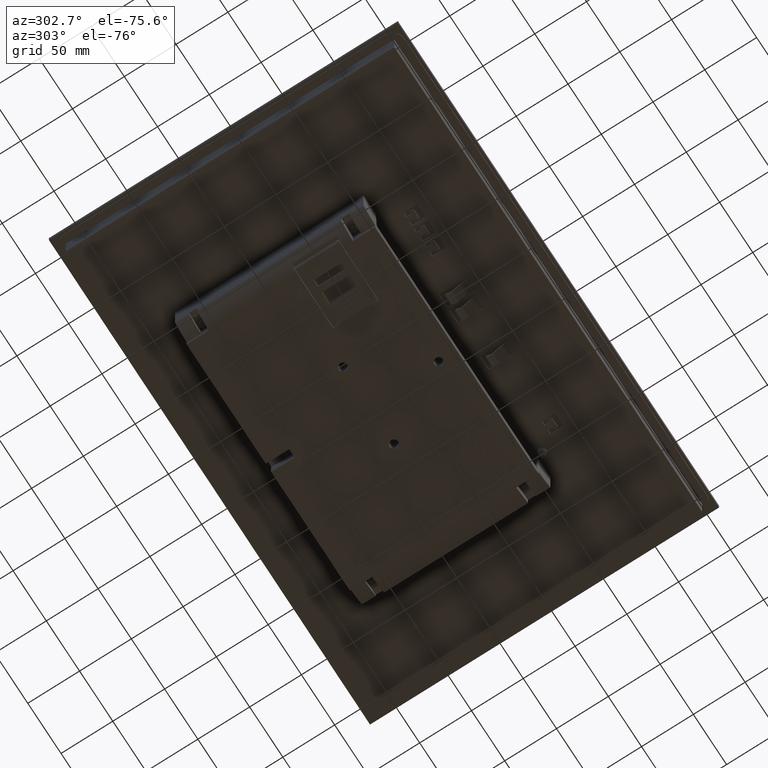
[diagram: clean part render]
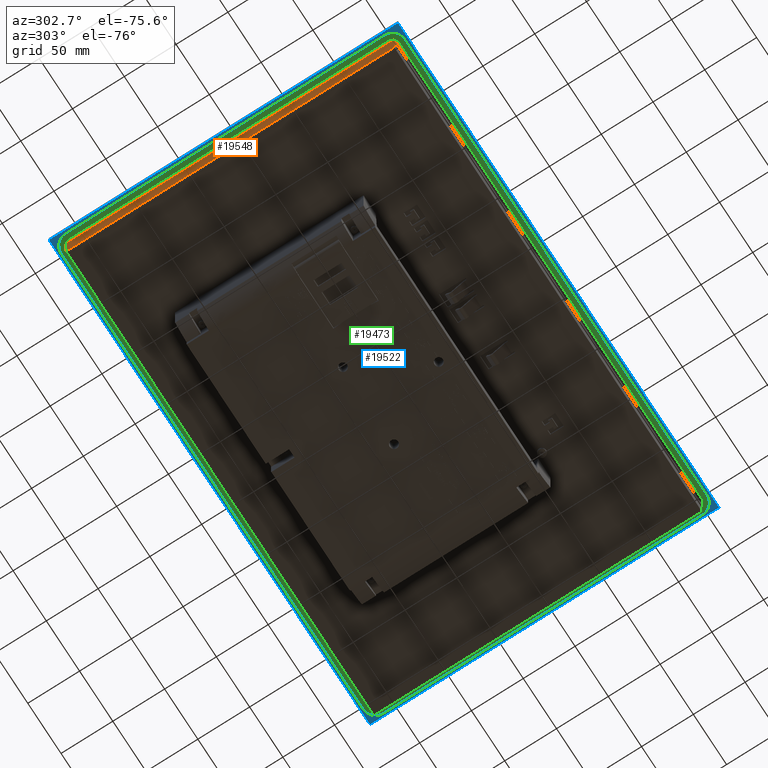
[diagram: same view with three faces highlighted in distinct colors, each labeled with its STEP entity id]
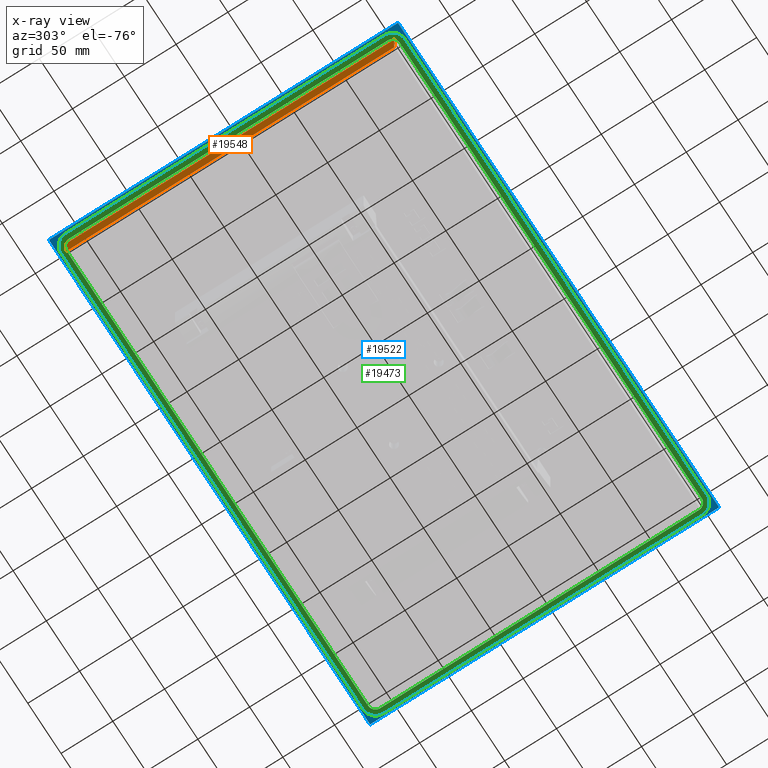
[diagram: x-ray of the same camera — body ghosted, the three highlighted faces saturated]
A machine part, auxiliary view with three faces highlighted in distinct colors.
The next image is the same camera in x-ray (body ghosted, the three faces saturated) — at least one of them is partly hidden behind the body in this view.
Their STEP definitions:

[orange] entity #19548 — the highlighted planar face has unit normal (-1, 0, 0).
#4044=LINE('',#66399,#9380);
#4135=LINE('',#66615,#9471);
#4139=LINE('',#66622,#9475);
#4140=LINE('',#66624,#9476);
#9380=VECTOR('',#54776,1.);
#9471=VECTOR('',#54953,1.);
#9475=VECTOR('',#54961,1.);
#9476=VECTOR('',#54964,1.);
#14742=FACE_OUTER_BOUND('',#23237,.T.);
#17155=PLANE('',#51076);
#19548=ADVANCED_FACE('',(#14742),#17155,.T.);
#23237=EDGE_LOOP('',(#27261,#27262,#27263,#27264));
#27261=ORIENTED_EDGE('',*,*,#44332,.F.);
#27262=ORIENTED_EDGE('',*,*,#44336,.F.);
#27263=ORIENTED_EDGE('',*,*,#44225,.T.);
#27264=ORIENTED_EDGE('',*,*,#44337,.T.);
#39665=VERTEX_POINT('',#66398);
#39666=VERTEX_POINT('',#66400);
#39747=VERTEX_POINT('',#66614);
#39748=VERTEX_POINT('',#66616);
#44225=EDGE_CURVE('',#39666,#39665,#4044,.T.);
#44332=EDGE_CURVE('',#39747,#39748,#4135,.T.);
#44336=EDGE_CURVE('',#39666,#39747,#4139,.T.);
#44337=EDGE_CURVE('',#39665,#39748,#4140,.T.);
#51076=AXIS2_PLACEMENT_3D('',#66625,#54965,#54966);
#54776=DIRECTION('',(0.,1.,0.));
#54953=DIRECTION('',(0.,1.,0.));
#54961=DIRECTION('',(0.,0.,1.));
#54964=DIRECTION('',(0.,0.,1.));
#54965=DIRECTION('',(1.,0.,0.));
#54966=DIRECTION('',(0.,0.,-1.));
#66398=CARTESIAN_POINT('',(231.45,144.45,-28.));
#66399=CARTESIAN_POINT('',(231.45,-172.45,-28.));
#66400=CARTESIAN_POINT('',(231.45,-172.45,-28.));
#66614=CARTESIAN_POINT('',(231.45,-172.45,-2.5));
#66615=CARTESIAN_POINT('',(231.45,-172.45,-2.5));
#66616=CARTESIAN_POINT('',(231.45,144.45,-2.5));
#66622=CARTESIAN_POINT('',(231.45,-172.45,-28.));
#66624=CARTESIAN_POINT('',(231.45,144.45,-28.));
#66625=CARTESIAN_POINT('',(231.45,-172.45,-28.));

[blue] entity #19522 — the highlighted planar face has unit normal (0, 0, -1).
#4085=LINE('',#66479,#9421);
#4086=LINE('',#66482,#9422);
#4087=LINE('',#66484,#9423);
#4088=LINE('',#66486,#9424);
#4089=LINE('',#66490,#9425);
#4090=LINE('',#66494,#9426);
#4091=LINE('',#66498,#9427);
#4092=LINE('',#66502,#9428);
#9421=VECTOR('',#54825,1.);
#9422=VECTOR('',#54826,1.);
#9423=VECTOR('',#54827,1.);
#9424=VECTOR('',#54828,1.);
#9425=VECTOR('',#54831,1.);
#9426=VECTOR('',#54834,1.);
#9427=VECTOR('',#54837,1.);
#9428=VECTOR('',#54840,1.);
#17137=PLANE('',#51038);
#19522=ADVANCED_FACE('',(#22429,#22430),#17137,.T.);
#22429=FACE_BOUND('',#23207,.T.);
#22430=FACE_BOUND('',#23208,.T.);
#23207=EDGE_LOOP('',(#27125,#27126,#27127,#27128));
#23208=EDGE_LOOP('',(#27129,#27130,#27131,#27132,#27133,#27134,#27135,#27136));
#27125=ORIENTED_EDGE('',*,*,#44266,.F.);
#27126=ORIENTED_EDGE('',*,*,#44267,.F.);
#27127=ORIENTED_EDGE('',*,*,#44268,.T.);
#27128=ORIENTED_EDGE('',*,*,#44269,.T.);
#27129=ORIENTED_EDGE('',*,*,#44270,.T.);
#27130=ORIENTED_EDGE('',*,*,#44271,.T.);
#27131=ORIENTED_EDGE('',*,*,#44272,.T.);
#27132=ORIENTED_EDGE('',*,*,#44273,.T.);
#27133=ORIENTED_EDGE('',*,*,#44274,.T.);
#27134=ORIENTED_EDGE('',*,*,#44275,.T.);
#27135=ORIENTED_EDGE('',*,*,#44276,.T.);
#27136=ORIENTED_EDGE('',*,*,#44277,.T.);
#39701=VERTEX_POINT('',#66480);
#39702=VERTEX_POINT('',#66481);
#39703=VERTEX_POINT('',#66483);
#39704=VERTEX_POINT('',#66485);
#39705=VERTEX_POINT('',#66488);
#39706=VERTEX_POINT('',#66489);
#39707=VERTEX_POINT('',#66491);
#39708=VERTEX_POINT('',#66493);
#39709=VERTEX_POINT('',#66495);
#39710=VERTEX_POINT('',#66497);
#39711=VERTEX_POINT('',#66499);
#39712=VERTEX_POINT('',#66501);
#44266=EDGE_CURVE('',#39701,#39702,#4085,.T.);
#44267=EDGE_CURVE('',#39703,#39701,#4086,.T.);
#44268=EDGE_CURVE('',#39703,#39704,#4087,.T.);
#44269=EDGE_CURVE('',#39704,#39702,#4088,.T.);
#44270=EDGE_CURVE('',#39705,#39706,#50401,.T.);
#44271=EDGE_CURVE('',#39706,#39707,#4089,.T.);
#44272=EDGE_CURVE('',#39707,#39708,#50402,.T.);
#44273=EDGE_CURVE('',#39708,#39709,#4090,.T.);
#44274=EDGE_CURVE('',#39709,#39710,#50403,.T.);
#44275=EDGE_CURVE('',#39710,#39711,#4091,.T.);
#44276=EDGE_CURVE('',#39711,#39712,#50404,.T.);
#44277=EDGE_CURVE('',#39712,#39705,#4092,.T.);
#50401=CIRCLE('',#51034,12.01685102585);
#50402=CIRCLE('',#51035,12.01685102585);
#50403=CIRCLE('',#51036,12.01685102585);
#50404=CIRCLE('',#51037,12.01685102585);
#51034=AXIS2_PLACEMENT_3D('',#66487,#54829,#54830);
#51035=AXIS2_PLACEMENT_3D('',#66492,#54832,#54833);
#51036=AXIS2_PLACEMENT_3D('',#66496,#54835,#54836);
#51037=AXIS2_PLACEMENT_3D('',#66500,#54838,#54839);
#51038=AXIS2_PLACEMENT_3D('',#66503,#54841,#54842);
#54825=DIRECTION('',(-1.,0.,0.));
#54826=DIRECTION('',(0.,1.,0.));
#54827=DIRECTION('',(-1.,0.,0.));
#54828=DIRECTION('',(0.,1.,0.));
#54829=DIRECTION('',(0.,0.,1.));
#54830=DIRECTION('',(0.,1.,0.));
#54831=DIRECTION('',(0.,-1.,0.));
#54832=DIRECTION('',(0.,0.,1.));
#54833=DIRECTION('',(-1.,0.,0.));
#54834=DIRECTION('',(1.,0.,0.));
#54835=DIRECTION('',(0.,0.,1.));
#54836=DIRECTION('',(0.,-1.,0.));
#54837=DIRECTION('',(0.,1.,0.));
#54838=DIRECTION('',(0.,0.,1.));
#54839=DIRECTION('',(1.,0.,0.));
#54840=DIRECTION('',(-1.,0.,0.));
#54841=DIRECTION('',(0.,0.,-1.));
#54842=DIRECTION('',(-1.,0.,0.));
#66479=CARTESIAN_POINT('',(241.49999999999,154.5,-2.5));
#66480=CARTESIAN_POINT('',(241.49999999999,154.5,-2.50000000000547));
#66481=CARTESIAN_POINT('',(-241.5,154.5,-2.5));
#66482=CARTESIAN_POINT('',(241.49999999999,-182.5,-2.50000000000547));
#66483=CARTESIAN_POINT('',(241.49999999999,-182.5,-2.50000000000547));
#66484=CARTESIAN_POINT('',(241.49999999999,-182.5,-2.5));
#66485=CARTESIAN_POINT('',(-241.5,-182.5,-2.5));
#66486=CARTESIAN_POINT('',(-241.5,-182.5,-2.5));
#66487=CARTESIAN_POINT('',(-227.,140.,-2.5));
#66488=CARTESIAN_POINT('',(-227.,152.0168510261,-2.5));
#66489=CARTESIAN_POINT('',(-239.01685102585,140.,-2.5));
#66490=CARTESIAN_POINT('',(-239.0168510261,140.,-2.5));
#66491=CARTESIAN_POINT('',(-239.0168510261,-168.,-2.5));
#66492=CARTESIAN_POINT('',(-227.,-168.,-2.5));
#66493=CARTESIAN_POINT('',(-227.,-180.01685102585,-2.5));
#66494=CARTESIAN_POINT('',(-227.,-180.0168510261,-2.5));
#66495=CARTESIAN_POINT('',(227.,-180.0168510261,-2.5));
#66496=CARTESIAN_POINT('',(227.,-168.,-2.5));
#66497=CARTESIAN_POINT('',(239.01685102585,-168.,-2.5));
#66498=CARTESIAN_POINT('',(239.0168510261,-168.,-2.5));
#66499=CARTESIAN_POINT('',(239.0168510261,140.,-2.5));
#66500=CARTESIAN_POINT('',(227.,140.,-2.5));
#66501=CARTESIAN_POINT('',(227.,152.01685102585,-2.5));
#66502=CARTESIAN_POINT('',(227.,152.0168510261,-2.5));
#66503=CARTESIAN_POINT('',(241.49999999999,-182.5,-2.5));

[green] entity #19473 — the highlighted planar face has unit normal (0, 0, -1).
#3795=LINE('',#65720,#9131);
#3800=LINE('',#65734,#9136);
#3803=LINE('',#65749,#9139);
#3806=LINE('',#65764,#9142);
#3809=LINE('',#65771,#9145);
#3814=LINE('',#65785,#9150);
#3818=LINE('',#65797,#9154);
#3822=LINE('',#65809,#9158);
#9131=VECTOR('',#54241,1.);
#9136=VECTOR('',#54254,1.);
#9139=VECTOR('',#54265,1.);
#9142=VECTOR('',#54276,1.);
#9145=VECTOR('',#54281,1.);
#9150=VECTOR('',#54294,1.);
#9154=VECTOR('',#54306,1.);
#9158=VECTOR('',#54318,1.);
#17106=PLANE('',#50919);
#19473=ADVANCED_FACE('',(#22391,#22392),#17106,.T.);
#22391=FACE_BOUND('',#23131,.T.);
#22392=FACE_BOUND('',#23132,.T.);
#23131=EDGE_LOOP('',(#26664,#26665,#26666,#26667,#26668,#26669,#26670,#26671));
#23132=EDGE_LOOP('',(#26672,#26673,#26674,#26675,#26676,#26677,#26678,#26679));
#26664=ORIENTED_EDGE('',*,*,#43914,.T.);
#26665=ORIENTED_EDGE('',*,*,#43918,.T.);
#26666=ORIENTED_EDGE('',*,*,#43921,.T.);
#26667=ORIENTED_EDGE('',*,*,#43924,.T.);
#26668=ORIENTED_EDGE('',*,*,#43927,.T.);
#26669=ORIENTED_EDGE('',*,*,#43930,.T.);
#26670=ORIENTED_EDGE('',*,*,#43933,.T.);
#26671=ORIENTED_EDGE('',*,*,#43935,.T.);
#26672=ORIENTED_EDGE('',*,*,#43892,.T.);
#26673=ORIENTED_EDGE('',*,*,#43896,.T.);
#26674=ORIENTED_EDGE('',*,*,#43899,.T.);
#26675=ORIENTED_EDGE('',*,*,#43902,.T.);
#26676=ORIENTED_EDGE('',*,*,#43905,.T.);
#26677=ORIENTED_EDGE('',*,*,#43908,.T.);
#26678=ORIENTED_EDGE('',*,*,#43911,.T.);
#26679=ORIENTED_EDGE('',*,*,#43937,.T.);
#39386=VERTEX_POINT('',#65719);
#39387=VERTEX_POINT('',#65721);
#39389=VERTEX_POINT('',#65727);
#39391=VERTEX_POINT('',#65733);
#39393=VERTEX_POINT('',#65739);
#39395=VERTEX_POINT('',#65748);
#39397=VERTEX_POINT('',#65757);
#39399=VERTEX_POINT('',#65763);
#39402=VERTEX_POINT('',#65770);
#39403=VERTEX_POINT('',#65772);
#39405=VERTEX_POINT('',#65778);
#39407=VERTEX_POINT('',#65784);
#39409=VERTEX_POINT('',#65790);
#39411=VERTEX_POINT('',#65796);
#39413=VERTEX_POINT('',#65802);
#39415=VERTEX_POINT('',#65808);
#43892=EDGE_CURVE('',#39387,#39386,#3795,.T.);
#43896=EDGE_CURVE('',#39386,#39389,#50320,.T.);
#43899=EDGE_CURVE('',#39389,#39391,#3800,.T.);
#43902=EDGE_CURVE('',#39391,#39393,#50322,.T.);
#43905=EDGE_CURVE('',#39393,#39395,#3803,.T.);
#43908=EDGE_CURVE('',#39395,#39397,#50324,.T.);
#43911=EDGE_CURVE('',#39397,#39399,#3806,.T.);
#43914=EDGE_CURVE('',#39403,#39402,#3809,.T.);
#43918=EDGE_CURVE('',#39402,#39405,#50326,.T.);
#43921=EDGE_CURVE('',#39405,#39407,#3814,.T.);
#43924=EDGE_CURVE('',#39407,#39409,#50328,.T.);
#43927=EDGE_CURVE('',#39409,#39411,#3818,.T.);
#43930=EDGE_CURVE('',#39411,#39413,#50330,.T.);
#43933=EDGE_CURVE('',#39413,#39415,#3822,.T.);
#43935=EDGE_CURVE('',#39415,#39403,#50332,.T.);
#43937=EDGE_CURVE('',#39399,#39387,#50334,.T.);
#50320=CIRCLE('',#50889,7.);
#50322=CIRCLE('',#50893,7.);
#50324=CIRCLE('',#50897,6.983148973279);
#50326=CIRCLE('',#50902,12.);
#50328=CIRCLE('',#50906,12.);
#50330=CIRCLE('',#50910,12.);
#50332=CIRCLE('',#50914,12.);
#50334=CIRCLE('',#50917,7.);
#50889=AXIS2_PLACEMENT_3D('',#65728,#54248,#54249);
#50893=AXIS2_PLACEMENT_3D('',#65740,#54260,#54261);
#50897=AXIS2_PLACEMENT_3D('',#65758,#54270,#54271);
#50902=AXIS2_PLACEMENT_3D('',#65779,#54288,#54289);
#50906=AXIS2_PLACEMENT_3D('',#65791,#54300,#54301);
#50910=AXIS2_PLACEMENT_3D('',#65803,#54312,#54313);
#50914=AXIS2_PLACEMENT_3D('',#65812,#54323,#54324);
#50917=AXIS2_PLACEMENT_3D('',#65815,#54329,#54330);
#50919=AXIS2_PLACEMENT_3D('',#65817,#54333,#54334);
#54241=DIRECTION('',(0.,-1.,0.));
#54248=DIRECTION('',(0.,0.,1.));
#54249=DIRECTION('',(-1.,0.,0.));
#54254=DIRECTION('',(1.,0.,0.));
#54260=DIRECTION('',(0.,0.,1.));
#54261=DIRECTION('',(0.,-1.,0.));
#54265=DIRECTION('',(0.,1.,0.));
#54270=DIRECTION('',(0.,0.,1.));
#54271=DIRECTION('',(0.,1.,0.));
#54276=DIRECTION('',(-1.,0.,0.));
#54281=DIRECTION('',(0.,1.,0.));
#54288=DIRECTION('',(0.,0.,-1.));
#54289=DIRECTION('',(0.,1.,0.));
#54294=DIRECTION('',(1.,0.,0.));
#54300=DIRECTION('',(0.,0.,-1.));
#54301=DIRECTION('',(1.,0.,0.));
#54306=DIRECTION('',(0.,-1.,0.));
#54312=DIRECTION('',(0.,0.,-1.));
#54313=DIRECTION('',(0.,-1.,0.));
#54318=DIRECTION('',(-1.,0.,0.));
#54323=DIRECTION('',(0.,0.,-1.));
#54324=DIRECTION('',(-1.,0.,0.));
#54329=DIRECTION('',(0.,0.,1.));
#54330=DIRECTION('',(0.,1.,0.));
#54333=DIRECTION('',(0.,0.,-1.));
#54334=DIRECTION('',(-1.,0.,0.));
#65719=CARTESIAN_POINT('',(-234.,-168.,-4.5));
#65720=CARTESIAN_POINT('',(-234.,140.,-4.5));
#65721=CARTESIAN_POINT('',(-234.,140.,-4.5));
#65727=CARTESIAN_POINT('',(-227.,-175.,-4.5));
#65728=CARTESIAN_POINT('',(-227.,-168.,-4.5));
#65733=CARTESIAN_POINT('',(227.,-175.,-4.5));
#65734=CARTESIAN_POINT('',(-227.,-175.,-4.5));
#65739=CARTESIAN_POINT('',(234.,-168.,-4.5));
#65740=CARTESIAN_POINT('',(227.,-168.,-4.5));
#65748=CARTESIAN_POINT('',(233.99157448664,140.,-4.5));
#65749=CARTESIAN_POINT('',(234.,-168.,-4.5));
#65757=CARTESIAN_POINT('',(227.,146.991574486639,-4.5));
#65758=CARTESIAN_POINT('',(227.,140.,-4.5));
#65763=CARTESIAN_POINT('',(-227.,147.,-4.5));
#65764=CARTESIAN_POINT('',(227.,147.,-4.5));
#65770=CARTESIAN_POINT('',(-239.,140.,-4.5));
#65771=CARTESIAN_POINT('',(-239.,-168.,-4.5));
#65772=CARTESIAN_POINT('',(-239.,-168.,-4.5));
#65778=CARTESIAN_POINT('',(-227.,152.,-4.5));
#65779=CARTESIAN_POINT('',(-227.,140.,-4.5));
#65784=CARTESIAN_POINT('',(227.,152.,-4.5));
#65785=CARTESIAN_POINT('',(-227.,152.,-4.5));
#65790=CARTESIAN_POINT('',(239.,140.,-4.5));
#65791=CARTESIAN_POINT('',(227.,140.,-4.5));
#65796=CARTESIAN_POINT('',(239.,-168.,-4.5));
#65797=CARTESIAN_POINT('',(239.,140.,-4.5));
#65802=CARTESIAN_POINT('',(227.,-180.,-4.5));
#65803=CARTESIAN_POINT('',(227.,-168.,-4.5));
#65808=CARTESIAN_POINT('',(-227.,-180.,-4.5));
#65809=CARTESIAN_POINT('',(227.,-180.,-4.5));
#65812=CARTESIAN_POINT('',(-227.,-168.,-4.5));
#65815=CARTESIAN_POINT('',(-227.,140.,-4.5));
#65817=CARTESIAN_POINT('',(-227.,140.,-4.5));